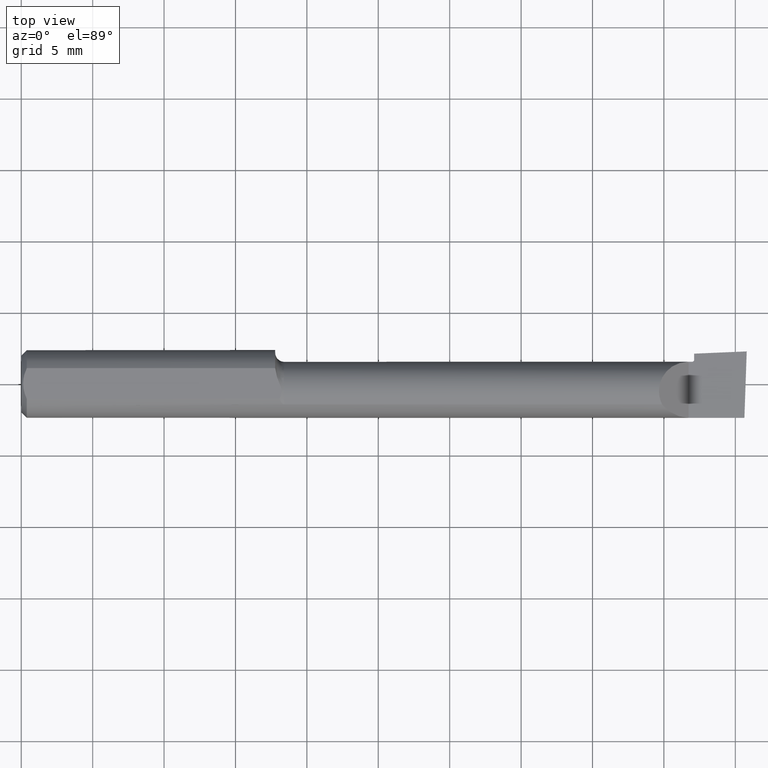
[diagram: clean part render]
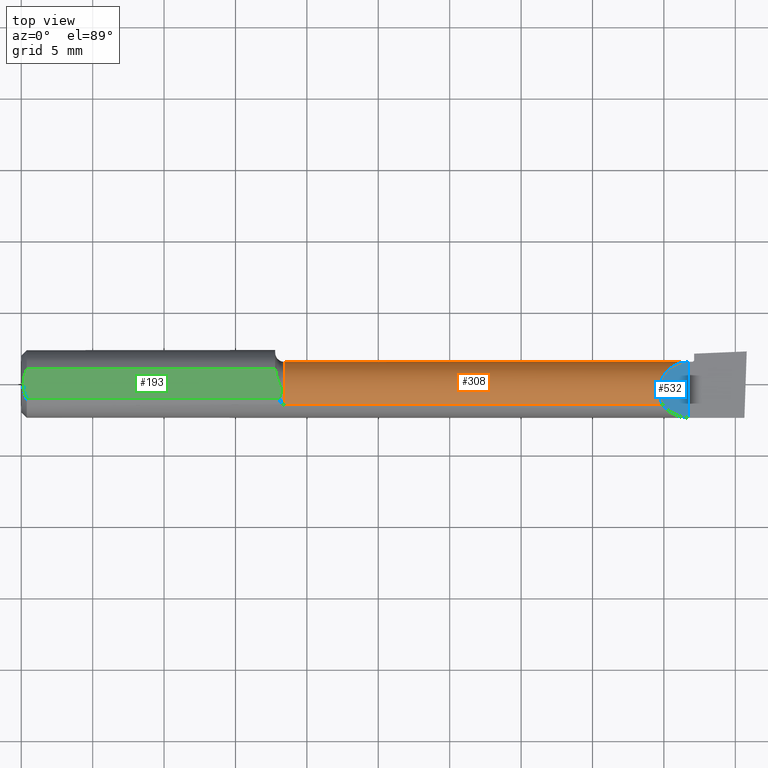
[diagram: same view with three faces highlighted in distinct colors, each labeled with its STEP entity id]
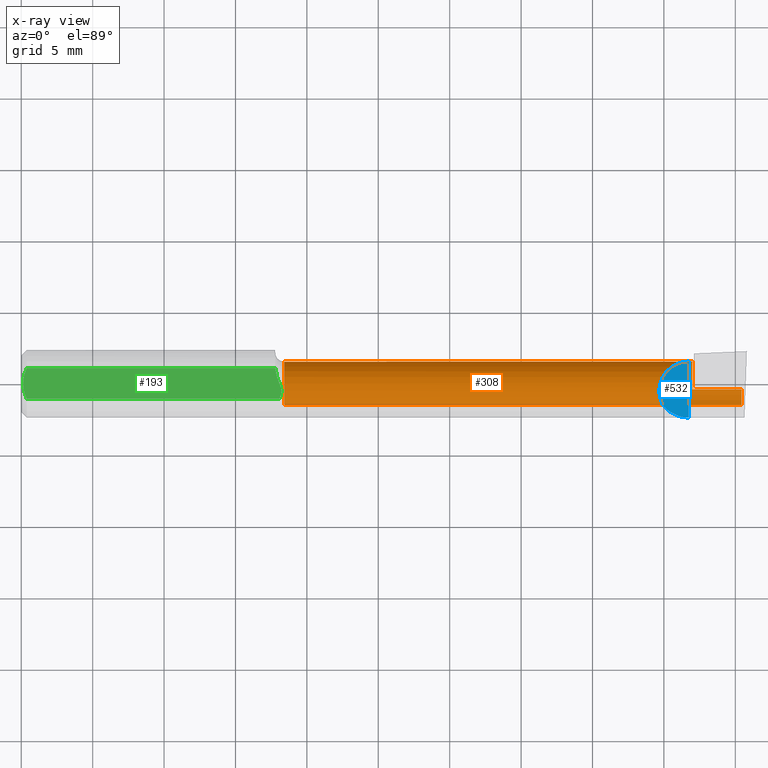
[diagram: x-ray of the same camera — body ghosted, the three highlighted faces saturated]
A machine part, top view with three faces highlighted in distinct colors.
The next image is the same camera in x-ray (body ghosted, the three faces saturated) — at least one of them is partly hidden behind the body in this view.
Their STEP definitions:

[orange] entity #308 — the highlighted cylindrical surface (edge-blend (fillet) strip) has radius 2.093 mm, axis along (-1, 0, -0).
#10 = CARTESIAN_POINT ( 'NONE',  ( 1.986324320446372305, -0.01381836679759350546, -0.08208644312275988064 ) ) ;
#11 = VERTEX_POINT ( 'NONE', #101 ) ;
#14 = VECTOR ( 'NONE', #535, 39.37007874015748143 ) ;
#21 = CARTESIAN_POINT ( 'NONE',  ( 1.985638364069036266, -0.02892578711483840409, -0.08340817113563980811 ) ) ;
#22 = VECTOR ( 'NONE', #270, 39.37007874015748143 ) ;
#36 = VERTEX_POINT ( 'NONE', #454 ) ;
#43 = CARTESIAN_POINT ( 'NONE',  ( 2.000000000000000000, -0.01381836679759350546, -0.08208644312275988064 ) ) ;
#63 = CARTESIAN_POINT ( 'NONE',  ( 1.766692136939142621, -0.05743333333333168478, 0.07390786306085683766 ) ) ;
#65 = ORIENTED_EDGE ( 'NONE', *, *, #420, .T. ) ;
#68 = CARTESIAN_POINT ( 'NONE',  ( 1.985817582123950320, -0.05743333333333396767, -0.07390786306085539437 ) ) ;
#70 = CARTESIAN_POINT ( 'NONE',  ( 1.840000000000000080, 0.06139999999999985053, -1.868634782302818344E-17 ) ) ;
#71 = VERTEX_POINT ( 'NONE', #70 ) ;
#77 = CARTESIAN_POINT ( 'NONE',  ( 1.849999999999999867, 0.06139999999999991298, -1.868634782302819884E-17 ) ) ;
#90 = VERTEX_POINT ( 'NONE', #77 ) ;
#100 = DIRECTION ( 'NONE',  ( 0.000000000000000000, -1.000000000000000000, 0.000000000000000000 ) ) ;
#101 = CARTESIAN_POINT ( 'NONE',  ( 1.766692136939142621, -0.05743333333333168478, 0.07390786306085683766 ) ) ;
#104 = EDGE_CURVE ( 'NONE', #338, #11, #119, .T. ) ;
#111 =( BOUNDED_CURVE ( )  B_SPLINE_CURVE ( 3, ( #589, #440, #592, #63 ),
 .UNSPECIFIED., .F., .T. ) 
 B_SPLINE_CURVE_WITH_KNOTS ( ( 4, 4 ),
 ( 4.719670598130175421, 6.741181949416923835 ),
 .UNSPECIFIED. ) 
 CURVE ( )  GEOMETRIC_REPRESENTATION_ITEM ( )  RATIONAL_B_SPLINE_CURVE ( ( 1.000000000000000000, 0.6874804262519154108, 0.6874804262519154108, 1.000000000000000000 ) ) 
 REPRESENTATION_ITEM ( '' )  );
#119 = LINE ( 'NONE', #311, #22 ) ;
#137 = ORIENTED_EDGE ( 'NONE', *, *, #212, .T. ) ;
#149 = EDGE_CURVE ( 'NONE', #463, #380, #431, .T. ) ;
#154 = AXIS2_PLACEMENT_3D ( 'NONE', #483, #295, #397 ) ;
#167 = CYLINDRICAL_SURFACE ( 'NONE', #154, 0.08239999999999984837 ) ;
#168 = EDGE_CURVE ( 'NONE', #380, #439, #610, .T. ) ;
#183 = CARTESIAN_POINT ( 'NONE',  ( 3.517254291842732546E-19, 0.06139999999999985747, -1.868634782302818344E-17 ) ) ;
#185 = ORIENTED_EDGE ( 'NONE', *, *, #279, .F. ) ;
#190 = DIRECTION ( 'NONE',  ( -1.000000000000000000, 4.268512490100411279E-18, -0.000000000000000000 ) ) ;
#196 = DIRECTION ( 'NONE',  ( -1.000000000000000000, 4.268512490100411279E-18, -0.000000000000000000 ) ) ;
#212 = EDGE_CURVE ( 'NONE', #597, #71, #292, .T. ) ;
#240 = AXIS2_PLACEMENT_3D ( 'NONE', #335, #190, #100 ) ;
#241 = DIRECTION ( 'NONE',  ( 0.000000000000000000, -1.000000000000000000, 0.000000000000000000 ) ) ;
#248 = LINE ( 'NONE', #388, #14 ) ;
#256 = CARTESIAN_POINT ( 'NONE',  ( 1.985465187176708168, -0.04383112193845223326, -0.08061315639902359720 ) ) ;
#259 = EDGE_CURVE ( 'NONE', #71, #90, #515, .T. ) ;
#263 = ORIENTED_EDGE ( 'NONE', *, *, #353, .F. ) ;
#270 = DIRECTION ( 'NONE',  ( 1.000000000000000000, -4.268512490100411279E-18, 0.000000000000000000 ) ) ;
#279 = EDGE_CURVE ( 'NONE', #338, #36, #475, .T. ) ;
#292 = CIRCLE ( 'NONE', #339, 0.08239999999999984837 ) ;
#293 = CARTESIAN_POINT ( 'NONE',  ( 0.7249999999999998668, -0.05743333333333425911, 0.07390786306085517232 ) ) ;
#295 = DIRECTION ( 'NONE',  ( -1.000000000000000000, 4.268512490100411279E-18, -0.000000000000000000 ) ) ;
#308 = ADVANCED_FACE ( 'NONE', ( #337 ), #167, .T. ) ;
#311 = CARTESIAN_POINT ( 'NONE',  ( 1.287499999999999867, -0.05743333333333396074, 0.07390786306085539437 ) ) ;
#328 = EDGE_CURVE ( 'NONE', #463, #36, #248, .T. ) ;
#332 = CARTESIAN_POINT ( 'NONE',  ( 1.840000000000000080, -0.02100000000000000477, 0.000000000000000000 ) ) ;
#333 = ORIENTED_EDGE ( 'NONE', *, *, #104, .T. ) ;
#335 = CARTESIAN_POINT ( 'NONE',  ( 1.849999999999999867, -0.02100000000000000477, 0.000000000000000000 ) ) ;
#337 = FACE_OUTER_BOUND ( 'NONE', #528, .T. ) ;
#338 = VERTEX_POINT ( 'NONE', #293 ) ;
#339 = AXIS2_PLACEMENT_3D ( 'NONE', #332, #423, #627 ) ;
#352 = CARTESIAN_POINT ( 'NONE',  ( 1.986324320446372305, -0.01381836679759350546, -0.08208644312275988064 ) ) ;
#353 = EDGE_CURVE ( 'NONE', #597, #11, #111, .T. ) ;
#361 = CARTESIAN_POINT ( 'NONE',  ( 1.985817582123950320, -0.05743333333333396767, -0.07390786306085539437 ) ) ;
#370 = VECTOR ( 'NONE', #512, 39.37007874015748143 ) ;
#380 = VERTEX_POINT ( 'NONE', #10 ) ;
#388 = CARTESIAN_POINT ( 'NONE',  ( 1.287499999999999867, -0.05743333333333396074, -0.07390786306085539437 ) ) ;
#395 = ORIENTED_EDGE ( 'NONE', *, *, #168, .F. ) ;
#397 = DIRECTION ( 'NONE',  ( -4.268512490100411279E-18, -1.000000000000000000, 0.000000000000000000 ) ) ;
#420 = EDGE_CURVE ( 'NONE', #90, #439, #432, .T. ) ;
#423 = DIRECTION ( 'NONE',  ( -1.000000000000000000, -0.000000000000000000, -0.000000000000000000 ) ) ;
#431 =( BOUNDED_CURVE ( )  B_SPLINE_CURVE ( 3, ( #68, #256, #21, #352 ),
 .UNSPECIFIED., .F., .F. ) 
 B_SPLINE_CURVE_WITH_KNOTS ( ( 4, 4 ),
 ( 6.100130346660547431, 6.645393451497628057 ),
 .UNSPECIFIED. ) 
 CURVE ( )  GEOMETRIC_REPRESENTATION_ITEM ( )  RATIONAL_B_SPLINE_CURVE ( ( 1.000000000000000000, 0.9753770948873830005, 0.9753770948873830005, 1.000000000000000000 ) ) 
 REPRESENTATION_ITEM ( '' )  );
#432 = CIRCLE ( 'NONE', #240, 0.08239999999999991775 ) ;
#439 = VERTEX_POINT ( 'NONE', #504 ) ;
#440 = CARTESIAN_POINT ( 'NONE',  ( 1.772303341926773967, 0.06090486560586769182, 0.06829665807322560234 ) ) ;
#441 = ORIENTED_EDGE ( 'NONE', *, *, #149, .F. ) ;
#454 = CARTESIAN_POINT ( 'NONE',  ( 0.7249999999999998668, -0.05743333333333425217, -0.07390786306085517232 ) ) ;
#459 = ORIENTED_EDGE ( 'NONE', *, *, #259, .T. ) ;
#463 = VERTEX_POINT ( 'NONE', #361 ) ;
#465 = VECTOR ( 'NONE', #574, 39.37007874015748143 ) ;
#475 = CIRCLE ( 'NONE', #568, 0.08239999999999977898 ) ;
#483 = CARTESIAN_POINT ( 'NONE',  ( 0.000000000000000000, -0.02099999999999999437, 0.000000000000000000 ) ) ;
#504 = CARTESIAN_POINT ( 'NONE',  ( 1.849999999999999867, -0.01381836679759354015, -0.08208644312275979738 ) ) ;
#512 = DIRECTION ( 'NONE',  ( -1.000000000000000000, 0.000000000000000000, 0.000000000000000000 ) ) ;
#515 = LINE ( 'NONE', #183, #465 ) ;
#528 = EDGE_LOOP ( 'NONE', ( #441, #575, #185, #333, #263, #137, #459, #65, #395 ) ) ;
#535 = DIRECTION ( 'NONE',  ( -1.000000000000000000, 4.268512490100411279E-18, -0.000000000000000000 ) ) ;
#541 = CARTESIAN_POINT ( 'NONE',  ( 0.7249999999999998668, -0.02099999999999999784, 0.000000000000000000 ) ) ;
#568 = AXIS2_PLACEMENT_3D ( 'NONE', #541, #196, #241 ) ;
#574 = DIRECTION ( 'NONE',  ( 1.000000000000000000, -4.268512490100411279E-18, 0.000000000000000000 ) ) ;
#575 = ORIENTED_EDGE ( 'NONE', *, *, #328, .T. ) ;
#576 = CARTESIAN_POINT ( 'NONE',  ( 1.840000000000000080, 0.06139781550502403096, 0.0005999999999995612792 ) ) ;
#589 = CARTESIAN_POINT ( 'NONE',  ( 1.840000000000000080, 0.06139781550502403096, 0.0005999999999995612792 ) ) ;
#592 = CARTESIAN_POINT ( 'NONE',  ( 1.736759123618127898, 0.003288122737898387018, 0.1038408763818715330 ) ) ;
#597 = VERTEX_POINT ( 'NONE', #576 ) ;
#610 = LINE ( 'NONE', #43, #370 ) ;
#627 = DIRECTION ( 'NONE',  ( 0.000000000000000000, 0.000000000000000000, 1.000000000000000000 ) ) ;

[blue] entity #532 — the highlighted planar face has unit normal (-0.7071, 0, -0.7071).
#11 = VERTEX_POINT ( 'NONE', #101 ) ;
#27 = CARTESIAN_POINT ( 'NONE',  ( 1.840000000000000080, -0.09359807690332104524, 0.0005999999999995612792 ) ) ;
#63 = CARTESIAN_POINT ( 'NONE',  ( 1.766692136939142621, -0.05743333333333168478, 0.07390786306085683766 ) ) ;
#76 = PLANE ( 'NONE',  #456 ) ;
#89 = CARTESIAN_POINT ( 'NONE',  ( 1.784610455782698724, -0.08049145269555457727, 0.05598954421730131109 ) ) ;
#101 = CARTESIAN_POINT ( 'NONE',  ( 1.766692136939142621, -0.05743333333333168478, 0.07390786306085683766 ) ) ;
#111 =( BOUNDED_CURVE ( )  B_SPLINE_CURVE ( 3, ( #589, #440, #592, #63 ),
 .UNSPECIFIED., .F., .T. ) 
 B_SPLINE_CURVE_WITH_KNOTS ( ( 4, 4 ),
 ( 4.719670598130175421, 6.741181949416923835 ),
 .UNSPECIFIED. ) 
 CURVE ( )  GEOMETRIC_REPRESENTATION_ITEM ( )  RATIONAL_B_SPLINE_CURVE ( ( 1.000000000000000000, 0.6874804262519154108, 0.6874804262519154108, 1.000000000000000000 ) ) 
 REPRESENTATION_ITEM ( '' )  );
#152 = ORIENTED_EDGE ( 'NONE', *, *, #229, .F. ) ;
#176 = DIRECTION ( 'NONE',  ( 0.000000000000000000, -1.000000000000000000, 0.000000000000000000 ) ) ;
#178 = CARTESIAN_POINT ( 'NONE',  ( 1.766692136939142621, -0.05743333333333168478, 0.07390786306085683766 ) ) ;
#187 = CARTESIAN_POINT ( 'NONE',  ( 1.840000000000000080, -0.09359807690332104524, 0.0005999999999995612792 ) ) ;
#218 = DIRECTION ( 'NONE',  ( -0.7071067811865474617, 0.000000000000000000, 0.7071067811865474617 ) ) ;
#229 = EDGE_CURVE ( 'NONE', #481, #11, #489, .T. ) ;
#290 = EDGE_LOOP ( 'NONE', ( #488, #516, #152 ) ) ;
#315 = FACE_OUTER_BOUND ( 'NONE', #290, .T. ) ;
#321 = CARTESIAN_POINT ( 'NONE',  ( 1.840000000000000080, 0.09359999999999998876, 0.0005999999999995612792 ) ) ;
#353 = EDGE_CURVE ( 'NONE', #597, #11, #111, .T. ) ;
#371 = LINE ( 'NONE', #321, #613 ) ;
#415 = DIRECTION ( 'NONE',  ( -0.7071067811865475727, 0.000000000000000000, -0.7071067811865475727 ) ) ;
#440 = CARTESIAN_POINT ( 'NONE',  ( 1.772303341926773967, 0.06090486560586769182, 0.06829665807322560234 ) ) ;
#456 = AXIS2_PLACEMENT_3D ( 'NONE', #502, #415, #218 ) ;
#462 = CARTESIAN_POINT ( 'NONE',  ( 1.810798836011072499, -0.09341088610867002984, 0.02980116398892690074 ) ) ;
#481 = VERTEX_POINT ( 'NONE', #27 ) ;
#488 = ORIENTED_EDGE ( 'NONE', *, *, #497, .F. ) ;
#489 =( BOUNDED_CURVE ( )  B_SPLINE_CURVE ( 3, ( #187, #462, #89, #178 ),
 .UNSPECIFIED., .F., .T. ) 
 B_SPLINE_CURVE_WITH_KNOTS ( ( 4, 4 ),
 ( 4.718799280696806875, 5.622568524807419088 ),
 .UNSPECIFIED. ) 
 CURVE ( )  GEOMETRIC_REPRESENTATION_ITEM ( )  RATIONAL_B_SPLINE_CURVE ( ( 1.000000000000000000, 0.9330838387302586856, 0.9330838387302586856, 1.000000000000000000 ) ) 
 REPRESENTATION_ITEM ( '' )  );
#497 = EDGE_CURVE ( 'NONE', #597, #481, #371, .T. ) ;
#502 = CARTESIAN_POINT ( 'NONE',  ( 1.756999999999999673, 0.04793338999999999933, 0.08360000000000000764 ) ) ;
#516 = ORIENTED_EDGE ( 'NONE', *, *, #353, .T. ) ;
#532 = ADVANCED_FACE ( 'NONE', ( #315 ), #76, .F. ) ;
#576 = CARTESIAN_POINT ( 'NONE',  ( 1.840000000000000080, 0.06139781550502403096, 0.0005999999999995612792 ) ) ;
#589 = CARTESIAN_POINT ( 'NONE',  ( 1.840000000000000080, 0.06139781550502403096, 0.0005999999999995612792 ) ) ;
#592 = CARTESIAN_POINT ( 'NONE',  ( 1.736759123618127898, 0.003288122737898387018, 0.1038408763818715330 ) ) ;
#597 = VERTEX_POINT ( 'NONE', #576 ) ;
#613 = VECTOR ( 'NONE', #176, 39.37007874015748143 ) ;

[green] entity #193 — the highlighted planar face has unit normal (-0, 0, -1).
#17 = DIRECTION ( 'NONE',  ( -1.000000000000000000, -0.000000000000000000, -0.000000000000000000 ) ) ;
#26 = CARTESIAN_POINT ( 'NONE',  ( 0.7165794261439658586, -0.02814343689618097749, 0.08360000000000003539 ) ) ;
#28 = CARTESIAN_POINT ( 'NONE',  ( 0.01500000000000024925, 0.04209513035969833505, 0.08360000000000004927 ) ) ;
#39 = PLANE ( 'NONE',  #391 ) ;
#51 = CARTESIAN_POINT ( 'NONE',  ( 2.000000000000000000, 0.04209513035969836975, 0.08360000000000000764 ) ) ;
#57 = VERTEX_POINT ( 'NONE', #603 ) ;
#58 = EDGE_CURVE ( 'NONE', #109, #254, #276, .T. ) ;
#61 = ORIENTED_EDGE ( 'NONE', *, *, #629, .T. ) ;
#73 = CARTESIAN_POINT ( 'NONE',  ( 0.7129080780883870760, -0.002953318044166630772, 0.08360000000000003539 ) ) ;
#75 = CARTESIAN_POINT ( 'NONE',  ( 0.7130603284648847628, -0.03865296673493581053, 0.08360000000000003539 ) ) ;
#95 = ORIENTED_EDGE ( 'NONE', *, *, #113, .F. ) ;
#96 = CARTESIAN_POINT ( 'NONE',  ( 0.005000000000000217812, 1.023804700982173805E-17, 0.08360000000000000764 ) ) ;
#99 = CARTESIAN_POINT ( 'NONE',  ( 0.01499999999997154825, -0.04209513035984145668, 0.08360000000000000764 ) ) ;
#109 = VERTEX_POINT ( 'NONE', #28 ) ;
#113 = EDGE_CURVE ( 'NONE', #579, #57, #120, .T. ) ;
#117 = CARTESIAN_POINT ( 'NONE',  ( 0.7117174437742903592, -0.04209513035984613349, 0.08360000000000000764 ) ) ;
#120 = B_SPLINE_CURVE_WITH_KNOTS ( 'NONE', 3,
 ( #351, #550, #171, #73, #412, #452, #358, #404, #26, #126, #75, #117 ),
 .UNSPECIFIED., .F., .F.,
 ( 4, 2, 2, 2, 2, 4 ),
 ( 0.01092621138090826491, 0.01205121053081291763, 0.01233246031828908081, 0.01261371010576524225, 0.01289495989324140543, 0.01317620968071756687 ),
 .UNSPECIFIED. ) ;
#126 = CARTESIAN_POINT ( 'NONE',  ( 0.7144025135469247445, -0.03521055180197240481, 0.08360000000000000764 ) ) ;
#145 = CARTESIAN_POINT ( 'NONE',  ( 0.009483685532750397995, -0.02856415438847177343, 0.08359999999999997988 ) ) ;
#160 = ORIENTED_EDGE ( 'NONE', *, *, #389, .F. ) ;
#163 = CARTESIAN_POINT ( 'NONE',  ( 0.005976064474242861677, 0.01450833282979354169, 0.08359999999999997988 ) ) ;
#169 = CARTESIAN_POINT ( 'NONE',  ( 0.01203159747439047286, 0.03549478314559913888, 0.08360000000000000764 ) ) ;
#171 = CARTESIAN_POINT ( 'NONE',  ( 0.7063128140231219598, 0.01393385481374773138, 0.08360000000000000764 ) ) ;
#193 = ADVANCED_FACE ( 'NONE', ( #362 ), #39, .F. ) ;
#204 = DIRECTION ( 'NONE',  ( 1.000000000000000000, 0.000000000000000000, 0.000000000000000000 ) ) ;
#254 = VERTEX_POINT ( 'NONE', #618 ) ;
#276 = B_SPLINE_CURVE_WITH_KNOTS ( 'NONE', 3,
 ( #561, #169, #508, #163, #355, #409 ),
 .UNSPECIFIED., .F., .F.,
 ( 4, 2, 4 ),
 ( 0.001498230153270218050, 0.002046825164355170045, 0.002595420175440121824 ),
 .UNSPECIFIED. ) ;
#277 = EDGE_CURVE ( 'NONE', #109, #579, #474, .T. ) ;
#281 = ORIENTED_EDGE ( 'NONE', *, *, #277, .F. ) ;
#324 = EDGE_LOOP ( 'NONE', ( #95, #281, #416, #61, #160 ) ) ;
#327 = CARTESIAN_POINT ( 'NONE',  ( 0.7001421765265185559, 0.04209513036078788711, 0.08360000000000000764 ) ) ;
#331 = CARTESIAN_POINT ( 'NONE',  ( 0.005981945000908654025, -0.01453549720624409958, 0.08360000000000000764 ) ) ;
#351 = CARTESIAN_POINT ( 'NONE',  ( 0.7001421765265185559, 0.04209513036078788711, 0.08360000000000000764 ) ) ;
#355 = CARTESIAN_POINT ( 'NONE',  ( 0.005000000000000212608, 0.007340705555993274310, 0.08360000000000000764 ) ) ;
#358 = CARTESIAN_POINT ( 'NONE',  ( 0.7173251875802011401, -0.01718587150066090002, 0.08360000000000003539 ) ) ;
#362 = FACE_OUTER_BOUND ( 'NONE', #324, .T. ) ;
#376 = DIRECTION ( 'NONE',  ( -1.000000000000000000, 0.000000000000000000, 0.000000000000000000 ) ) ;
#389 = EDGE_CURVE ( 'NONE', #57, #556, #487, .T. ) ;
#391 = AXIS2_PLACEMENT_3D ( 'NONE', #426, #466, #376 ) ;
#399 = B_SPLINE_CURVE_WITH_KNOTS ( 'NONE', 3,
 ( #96, #572, #331, #145, #525, #99 ),
 .UNSPECIFIED., .F., .F.,
 ( 4, 2, 4 ),
 ( 0.002595420175440121824, 0.003143963582281870776, 0.003692506989123619295 ),
 .UNSPECIFIED. ) ;
#404 = CARTESIAN_POINT ( 'NONE',  ( 0.7173689469072845881, -0.02449212022604174699, 0.08359999999999999376 ) ) ;
#409 = CARTESIAN_POINT ( 'NONE',  ( 0.005000000000000217812, 1.023804700982173805E-17, 0.08360000000000000764 ) ) ;
#412 = CARTESIAN_POINT ( 'NONE',  ( 0.7142773916201955453, -0.006451795069408025954, 0.08360000000000003539 ) ) ;
#416 = ORIENTED_EDGE ( 'NONE', *, *, #58, .T. ) ;
#426 = CARTESIAN_POINT ( 'NONE',  ( 0.000000000000000000, 0.04793338999999999933, 0.08360000000000000764 ) ) ;
#451 = CARTESIAN_POINT ( 'NONE',  ( 0.01499999999997154825, -0.04209513035984145668, 0.08360000000000000764 ) ) ;
#452 = CARTESIAN_POINT ( 'NONE',  ( 0.7164872154863860532, -0.01349519822107793365, 0.08359999999999999376 ) ) ;
#466 = DIRECTION ( 'NONE',  ( -0.000000000000000000, 0.000000000000000000, -1.000000000000000000 ) ) ;
#474 = LINE ( 'NONE', #51, #623 ) ;
#487 = LINE ( 'NONE', #599, #500 ) ;
#500 = VECTOR ( 'NONE', #17, 39.37007874015748143 ) ;
#508 = CARTESIAN_POINT ( 'NONE',  ( 0.009483687754784102600, 0.02856776309113260789, 0.08360000000000000764 ) ) ;
#525 = CARTESIAN_POINT ( 'NONE',  ( 0.01202468825749133767, -0.03547942025930518606, 0.08360000000000000764 ) ) ;
#550 = CARTESIAN_POINT ( 'NONE',  ( 0.7010757465550420120, 0.02762621477534986381, 0.08360000000000000764 ) ) ;
#556 = VERTEX_POINT ( 'NONE', #451 ) ;
#561 = CARTESIAN_POINT ( 'NONE',  ( 0.01500000000000024925, 0.04209513035969833505, 0.08360000000000004927 ) ) ;
#572 = CARTESIAN_POINT ( 'NONE',  ( 0.005000000000000208271, -0.007340015043780888718, 0.08360000000000000764 ) ) ;
#579 = VERTEX_POINT ( 'NONE', #327 ) ;
#599 = CARTESIAN_POINT ( 'NONE',  ( 2.000000000000000000, -0.04209513035969836975, 0.08360000000000000764 ) ) ;
#603 = CARTESIAN_POINT ( 'NONE',  ( 0.7117174437742903592, -0.04209513035984613349, 0.08360000000000000764 ) ) ;
#618 = CARTESIAN_POINT ( 'NONE',  ( 0.005000000000000217812, 1.023804700982173805E-17, 0.08360000000000000764 ) ) ;
#623 = VECTOR ( 'NONE', #204, 39.37007874015748143 ) ;
#629 = EDGE_CURVE ( 'NONE', #254, #556, #399, .T. ) ;